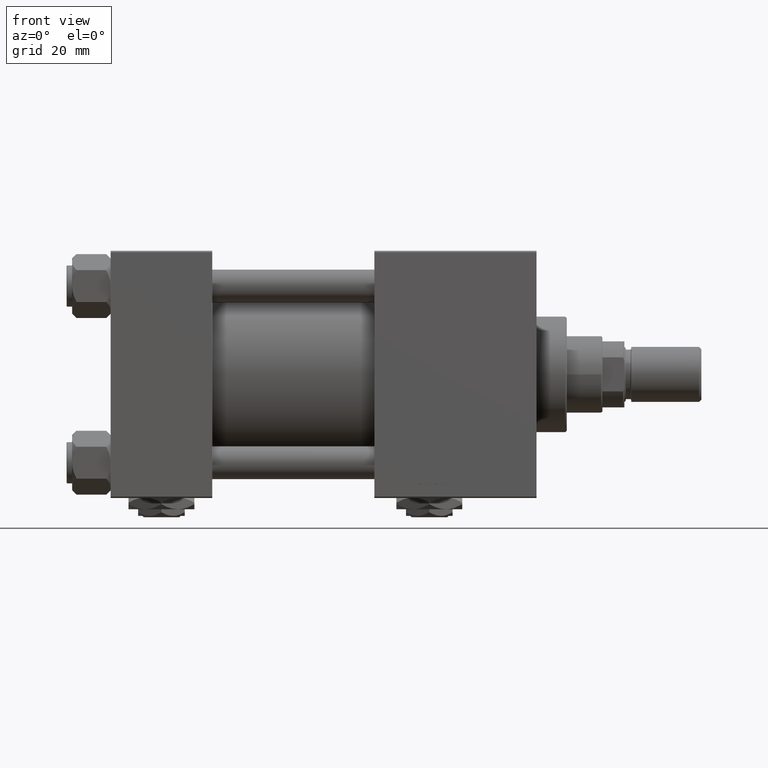
[diagram: clean part render]
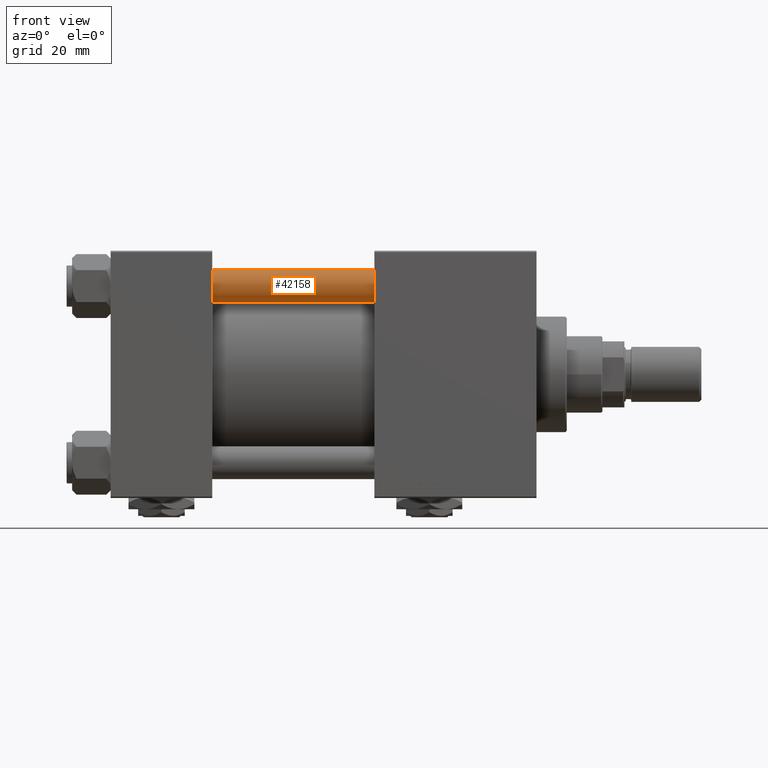
[diagram: same view with one face highlighted and labeled with its STEP entity id]
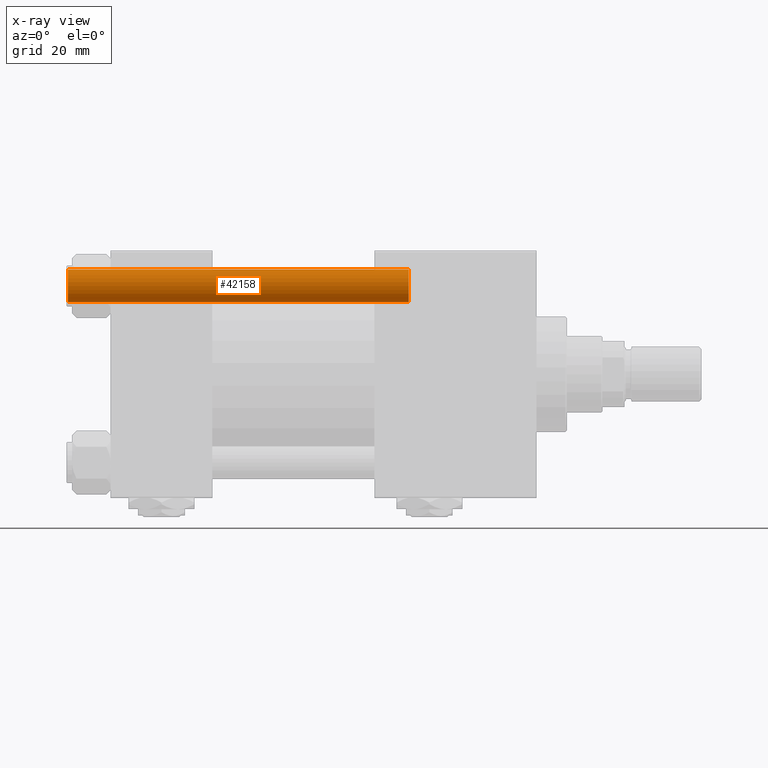
[diagram: x-ray of the same camera — body ghosted, the highlighted face saturated]
A machine part, front view. The second image highlights one B-rep face of the part: STEP entity #42158.
The next image is the same camera in x-ray: the body ghosted, the highlighted face saturated — about 0% of this face is hidden behind the body in this view.
In plain terms, the highlighted cylindrical surface (edge-blend (fillet) strip) has radius 6 mm, axis along (1, 0, -0).
Its self-contained STEP definition (entity closure, byte-faithful):
#2457 = LINE ( 'NONE', #10471, #10687 ) ;
#3938 = LINE ( 'NONE', #45020, #10344 ) ;
#4408 = AXIS2_PLACEMENT_3D ( 'NONE', #34103, #50660, #10374 ) ;
#5279 = FACE_OUTER_BOUND ( 'NONE', #27685, .T. ) ;
#6369 = ORIENTED_EDGE ( 'NONE', *, *, #35850, .T. ) ;
#7572 = CARTESIAN_POINT ( 'NONE',  ( -6.000000000000000888, 0.000000000000000000, 0.4999999999999865663 ) ) ;
#9513 = VERTEX_POINT ( 'NONE', #35382 ) ;
#10344 = VECTOR ( 'NONE', #15949, 1000.000000000000000 ) ;
#10374 = DIRECTION ( 'NONE',  ( 1.000000000000000000, 0.000000000000000000, 0.000000000000000000 ) ) ;
#10471 = CARTESIAN_POINT ( 'NONE',  ( 6.000000000000000888, 7.347880794884120722E-16, 125.0000000000000000 ) ) ;
#10687 = VECTOR ( 'NONE', #51283, 1000.000000000000000 ) ;
#11161 = EDGE_CURVE ( 'NONE', #28859, #16460, #27391, .T. ) ;
#11690 = AXIS2_PLACEMENT_3D ( 'NONE', #29291, #46632, #42073 ) ;
#12647 = VERTEX_POINT ( 'NONE', #16966 ) ;
#12663 = ORIENTED_EDGE ( 'NONE', *, *, #38912, .T. ) ;
#13872 = EDGE_CURVE ( 'NONE', #12647, #16460, #3938, .T. ) ;
#15949 = DIRECTION ( 'NONE',  ( -0.000000000000000000, -0.000000000000000000, -1.000000000000000000 ) ) ;
#15999 = ORIENTED_EDGE ( 'NONE', *, *, #13872, .F. ) ;
#16460 = VERTEX_POINT ( 'NONE', #7572 ) ;
#16966 = CARTESIAN_POINT ( 'NONE',  ( -6.000000000000000888, 0.000000000000000000, 124.5000000000000000 ) ) ;
#18727 = DIRECTION ( 'NONE',  ( 0.000000000000000000, 0.000000000000000000, -1.000000000000000000 ) ) ;
#21814 = CYLINDRICAL_SURFACE ( 'NONE', #11690, 6.000000000000000888 ) ;
#25403 = CARTESIAN_POINT ( 'NONE',  ( 6.000000000000000888, 7.347880794884120722E-16, 0.4999999999999865663 ) ) ;
#27391 = CIRCLE ( 'NONE', #4408, 6.000000000000000888 ) ;
#27685 = EDGE_LOOP ( 'NONE', ( #6369, #12663, #49589, #15999 ) ) ;
#28859 = VERTEX_POINT ( 'NONE', #25403 ) ;
#29291 = CARTESIAN_POINT ( 'NONE',  ( 0.000000000000000000, 0.000000000000000000, 125.0000000000000000 ) ) ;
#31281 = CARTESIAN_POINT ( 'NONE',  ( 0.000000000000000000, 0.000000000000000000, 124.5000000000000000 ) ) ;
#31908 = CIRCLE ( 'NONE', #48934, 6.000000000000000888 ) ;
#34103 = CARTESIAN_POINT ( 'NONE',  ( 0.000000000000000000, 0.000000000000000000, 0.4999999999999865663 ) ) ;
#35382 = CARTESIAN_POINT ( 'NONE',  ( 6.000000000000000888, 7.347880794884120722E-16, 124.5000000000000000 ) ) ;
#35850 = EDGE_CURVE ( 'NONE', #12647, #9513, #31908, .T. ) ;
#38912 = EDGE_CURVE ( 'NONE', #9513, #28859, #2457, .T. ) ;
#42073 = DIRECTION ( 'NONE',  ( -1.000000000000000000, 0.000000000000000000, 0.000000000000000000 ) ) ;
#42158 = ADVANCED_FACE ( 'NONE', ( #5279 ), #21814, .T. ) ;
#43810 = DIRECTION ( 'NONE',  ( 1.000000000000000000, 0.000000000000000000, 0.000000000000000000 ) ) ;
#45020 = CARTESIAN_POINT ( 'NONE',  ( -6.000000000000000888, 0.000000000000000000, 125.0000000000000000 ) ) ;
#46632 = DIRECTION ( 'NONE',  ( -0.000000000000000000, -0.000000000000000000, -1.000000000000000000 ) ) ;
#48934 = AXIS2_PLACEMENT_3D ( 'NONE', #31281, #18727, #43810 ) ;
#49589 = ORIENTED_EDGE ( 'NONE', *, *, #11161, .T. ) ;
#50660 = DIRECTION ( 'NONE',  ( -0.000000000000000000, -0.000000000000000000, 1.000000000000000000 ) ) ;
#51283 = DIRECTION ( 'NONE',  ( -0.000000000000000000, -0.000000000000000000, -1.000000000000000000 ) ) ;